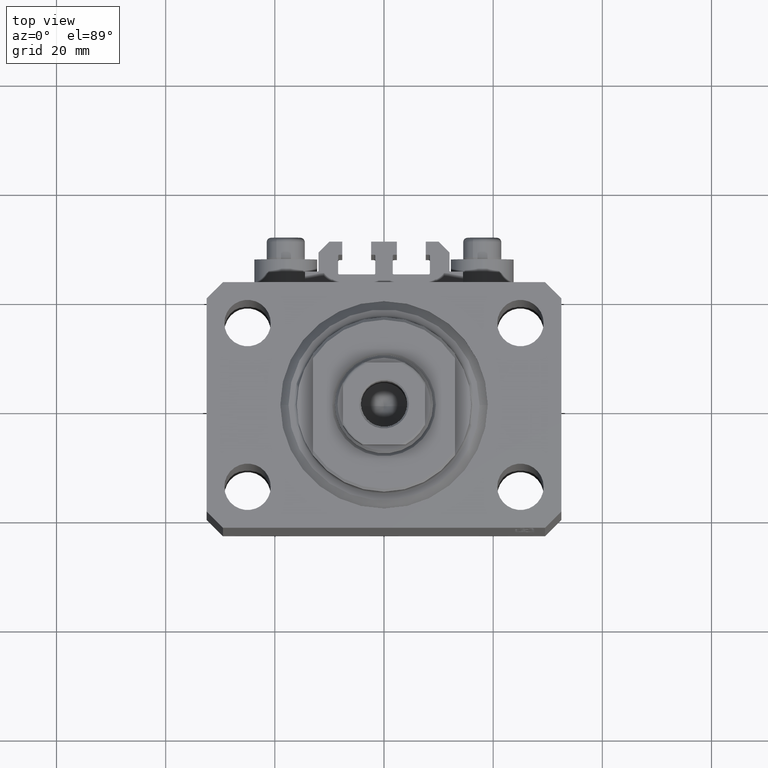
[diagram: clean part render]
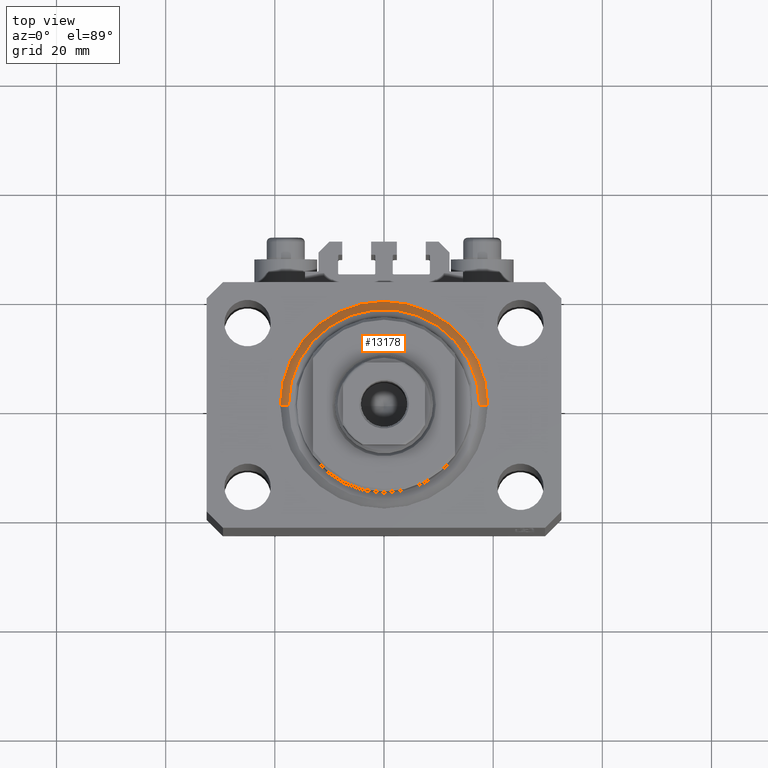
[diagram: same view with one face highlighted and labeled with its STEP entity id]
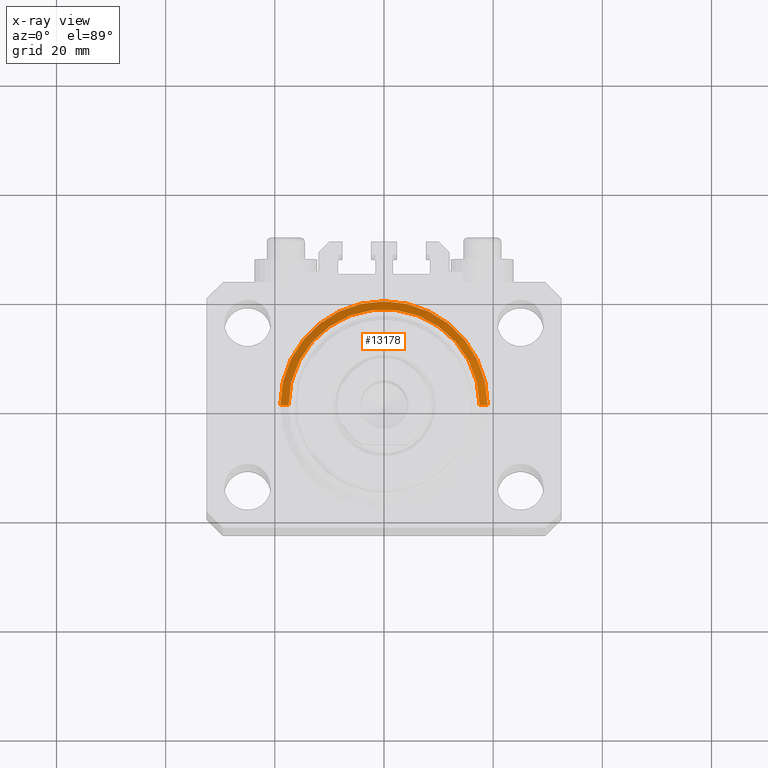
[diagram: x-ray of the same camera — body ghosted, the highlighted face saturated]
A machine part, top view. The second image highlights one B-rep face of the part: STEP entity #13178.
The next image is the same camera in x-ray: the body ghosted, the highlighted face saturated — about 0% of this face is hidden behind the body in this view.
In plain terms, the highlighted conical surface has half-angle 45 deg.
Its self-contained STEP definition (entity closure, byte-faithful):
#2571 = CARTESIAN_POINT ( 'NONE',  ( 0.000000000000000000, 0.000000000000000000, 0.000000000000000000 ) ) ;
#3070 = VERTEX_POINT ( 'NONE', #34814 ) ;
#3228 = AXIS2_PLACEMENT_3D ( 'NONE', #2571, #10001, #16489 ) ;
#3384 = CARTESIAN_POINT ( 'NONE',  ( -19.00000000000000000, 2.326828918379970970E-15, 1.500000000000004885 ) ) ;
#4332 = CONICAL_SURFACE ( 'NONE', #42573, 19.00000000000000000, 0.7853981633974492782 ) ;
#6047 = VECTOR ( 'NONE', #41647, 1000.000000000000000 ) ;
#6820 = DIRECTION ( 'NONE',  ( -0.000000000000000000, -0.000000000000000000, 1.000000000000000000 ) ) ;
#8244 = EDGE_LOOP ( 'NONE', ( #34566, #10934, #12732, #47034 ) ) ;
#9603 = VERTEX_POINT ( 'NONE', #44737 ) ;
#10001 = DIRECTION ( 'NONE',  ( -0.000000000000000000, -0.000000000000000000, -1.000000000000000000 ) ) ;
#10101 = CIRCLE ( 'NONE', #3228, 17.49999999999999289 ) ;
#10338 = LINE ( 'NONE', #3384, #19417 ) ;
#10934 = ORIENTED_EDGE ( 'NONE', *, *, #17571, .T. ) ;
#12732 = ORIENTED_EDGE ( 'NONE', *, *, #41932, .F. ) ;
#13178 = ADVANCED_FACE ( 'NONE', ( #36712 ), #4332, .T. ) ;
#13828 = CIRCLE ( 'NONE', #46745, 19.00000000000000000 ) ;
#16489 = DIRECTION ( 'NONE',  ( 1.000000000000000000, 0.000000000000000000, 0.000000000000000000 ) ) ;
#17571 = EDGE_CURVE ( 'NONE', #30580, #3070, #10338, .T. ) ;
#17695 = VERTEX_POINT ( 'NONE', #26633 ) ;
#19417 = VECTOR ( 'NONE', #20886, 1000.000000000000000 ) ;
#19690 = DIRECTION ( 'NONE',  ( -0.000000000000000000, -0.000000000000000000, 1.000000000000000000 ) ) ;
#20886 = DIRECTION ( 'NONE',  ( -0.7071067811865483499, 8.659560562354943952E-17, 0.7071067811865467956 ) ) ;
#21441 = DIRECTION ( 'NONE',  ( 1.000000000000000000, 0.000000000000000000, 0.000000000000000000 ) ) ;
#26633 = CARTESIAN_POINT ( 'NONE',  ( 19.00000000000000000, 2.326828918379970970E-15, 1.500000000000004885 ) ) ;
#26804 = LINE ( 'NONE', #41415, #6047 ) ;
#28882 = CARTESIAN_POINT ( 'NONE',  ( 0.000000000000000000, 0.000000000000000000, 1.500000000000004885 ) ) ;
#30580 = VERTEX_POINT ( 'NONE', #36729 ) ;
#32968 = EDGE_CURVE ( 'NONE', #9603, #17695, #26804, .T. ) ;
#34566 = ORIENTED_EDGE ( 'NONE', *, *, #45104, .F. ) ;
#34814 = CARTESIAN_POINT ( 'NONE',  ( -19.00000000000000000, 0.000000000000000000, 1.500000000000004885 ) ) ;
#36712 = FACE_OUTER_BOUND ( 'NONE', #8244, .T. ) ;
#36729 = CARTESIAN_POINT ( 'NONE',  ( -17.49999999999999289, 2.234980408443919215E-15, 0.000000000000000000 ) ) ;
#37189 = CARTESIAN_POINT ( 'NONE',  ( 0.000000000000000000, 0.000000000000000000, 1.500000000000004885 ) ) ;
#41415 = CARTESIAN_POINT ( 'NONE',  ( 19.00000000000000000, 0.000000000000000000, 1.500000000000004885 ) ) ;
#41647 = DIRECTION ( 'NONE',  ( 0.7071067811865483499, 0.000000000000000000, 0.7071067811865467956 ) ) ;
#41932 = EDGE_CURVE ( 'NONE', #17695, #3070, #13828, .T. ) ;
#42573 = AXIS2_PLACEMENT_3D ( 'NONE', #37189, #19690, #44612 ) ;
#44612 = DIRECTION ( 'NONE',  ( 1.000000000000000000, 0.000000000000000000, 0.000000000000000000 ) ) ;
#44737 = CARTESIAN_POINT ( 'NONE',  ( 17.49999999999999289, 0.000000000000000000, 0.000000000000000000 ) ) ;
#45104 = EDGE_CURVE ( 'NONE', #30580, #9603, #10101, .T. ) ;
#46745 = AXIS2_PLACEMENT_3D ( 'NONE', #28882, #6820, #21441 ) ;
#47034 = ORIENTED_EDGE ( 'NONE', *, *, #32968, .F. ) ;